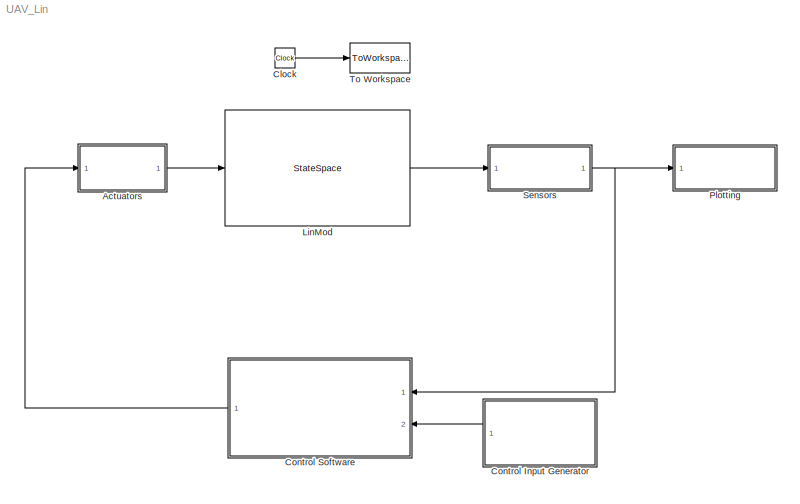
MODEL UAV_Lin
KIND model
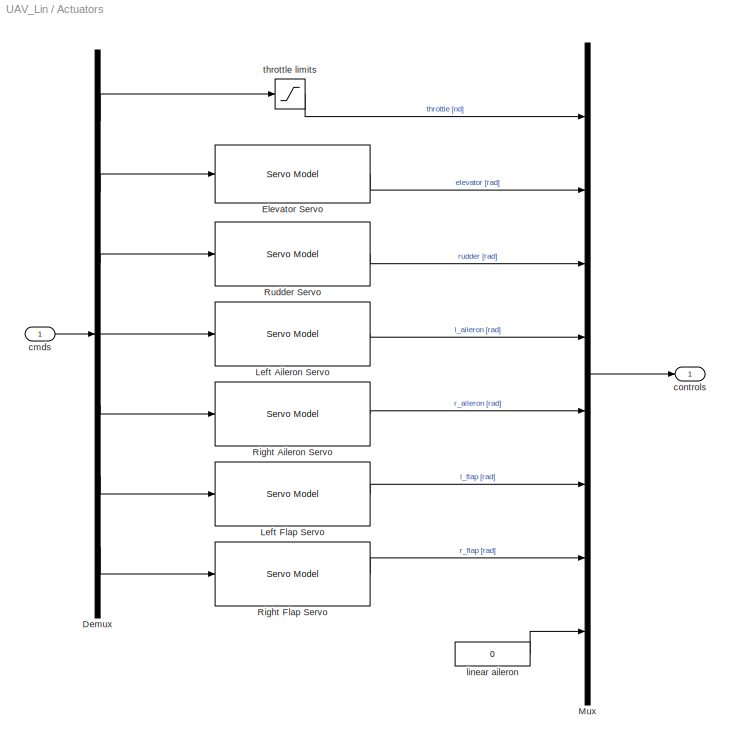
BLOCK [SubSystem] Actuators
  AncestorBlock = Actuator_Lib/Actuators
  FunctionWithSeparateData = off
  MaskHideContents = off
  MinAlgLoopOccurrences = off
  Opaque = off
  Ports = [1, 1]
  PropExecContextOutsideSubsystem = off
  RTWSystemCode = Auto
  RequestExecContextInheritance = off
  SID = 2
BLOCK [Demux] Actuators/Demux
  DisplayOption = bar
  Outputs = 7
  Ports = [1, 7]
  SID = 203
BLOCK [Reference] Actuators/Elevator Servo  REF=Actuator_Lib/Servo Model
  FunctionWithSeparateData = off
  POS_hi = AC.Actuator.elevator.PosLim-TrimCondition.Inputs.elevator
  POS_lo = AC.Actuator.elevator.NegLim-TrimCondition.Inputs.elevator
  Ports = [1, 1]
  RL = AC.Actuator.elevator.RateLim
  RTWMemSecDataConstants = Inherit from model
  RTWMemSecDataInternal = Inherit from model
  RTWMemSecDataParameters = Inherit from model
  RTWMemSecFuncExecute = Inherit from model
  RTWMemSecFuncInitTerm = Inherit from model
  SID = 203
  ShowPortLabels = FromPortIcon
  SourceBlock = Actuator_Lib/Servo Model
  SourceType = Rate and Position Limited Servo
  SystemSampleTime = -1
  freq = AC.Actuator.elevator.BW
BLOCK [Reference] Actuators/Left Aileron Servo  REF=Actuator_Lib/Servo Model
  FunctionWithSeparateData = off
  POS_hi = AC.Actuator.l_aileron.PosLim-TrimCondition.Inputs.l_aileron
  POS_lo = AC.Actuator.l_aileron.NegLim-TrimCondition.Inputs.l_aileron
  Ports = [1, 1]
  RL = AC.Actuator.l_aileron.RateLim
  RTWMemSecDataConstants = Inherit from model
  RTWMemSecDataInternal = Inherit from model
  RTWMemSecDataParameters = Inherit from model
  RTWMemSecFuncExecute = Inherit from model
  RTWMemSecFuncInitTerm = Inherit from model
  SID = 203
  ShowPortLabels = FromPortIcon
  SourceBlock = Actuator_Lib/Servo Model
  SourceType = Rate and Position Limited Servo
  SystemSampleTime = -1
  freq = AC.Actuator.l_aileron.BW
BLOCK [Reference] Actuators/Left Flap Servo  REF=Actuator_Lib/Servo Model
  FunctionWithSeparateData = off
  POS_hi = AC.Actuator.l_flap.PosLim
  POS_lo = AC.Actuator.l_flap.NegLim
  Ports = [1, 1]
  RL = AC.Actuator.l_flap.RateLim
  RTWMemSecDataConstants = Inherit from model
  RTWMemSecDataInternal = Inherit from model
  RTWMemSecDataParameters = Inherit from model
  RTWMemSecFuncExecute = Inherit from model
  RTWMemSecFuncInitTerm = Inherit from model
  SID = 203
  ShowPortLabels = FromPortIcon
  SourceBlock = Actuator_Lib/Servo Model
  SourceType = Rate and Position Limited Servo
  SystemSampleTime = -1
  freq = AC.Actuator.l_flap.BW
BLOCK [Mux] Actuators/Mux
  DisplayOption = bar
  Inputs = 8
  Ports = [8, 1]
  SID = 203
BLOCK [Reference] Actuators/Right Aileron Servo  REF=Actuator_Lib/Servo Model
  FunctionWithSeparateData = off
  POS_hi = AC.Actuator.r_aileron.PosLim-TrimCondition.Inputs.r_aileron
  POS_lo = AC.Actuator.r_aileron.NegLim-TrimCondition.Inputs.r_aileron
  Ports = [1, 1]
  RL = AC.Actuator.r_aileron.RateLim
  RTWMemSecDataConstants = Inherit from model
  RTWMemSecDataInternal = Inherit from model
  RTWMemSecDataParameters = Inherit from model
  RTWMemSecFuncExecute = Inherit from model
  RTWMemSecFuncInitTerm = Inherit from model
  SID = 203
  ShowPortLabels = FromPortIcon
  SourceBlock = Actuator_Lib/Servo Model
  SourceType = Rate and Position Limited Servo
  SystemSampleTime = -1
  freq = AC.Actuator.r_aileron.BW
BLOCK [Reference] Actuators/Right Flap Servo  REF=Actuator_Lib/Servo Model
  FunctionWithSeparateData = off
  POS_hi = AC.Actuator.l_flap.PosLim
  POS_lo = AC.Actuator.l_flap.NegLim
  Ports = [1, 1]
  RL = AC.Actuator.l_flap.RateLim
  RTWMemSecDataConstants = Inherit from model
  RTWMemSecDataInternal = Inherit from model
  RTWMemSecDataParameters = Inherit from model
  RTWMemSecFuncExecute = Inherit from model
  RTWMemSecFuncInitTerm = Inherit from model
  SID = 203
  ShowPortLabels = FromPortIcon
  SourceBlock = Actuator_Lib/Servo Model
  SourceType = Rate and Position Limited Servo
  SystemSampleTime = -1
  freq = AC.Actuator.l_flap.BW
BLOCK [Reference] Actuators/Rudder Servo  REF=Actuator_Lib/Servo Model
  FunctionWithSeparateData = off
  POS_hi = AC.Actuator.rudder.PosLim-TrimCondition.Inputs.rudder
  POS_lo = AC.Actuator.rudder.NegLim-TrimCondition.Inputs.rudder
  Ports = [1, 1]
  RL = AC.Actuator.rudder.RateLim
  RTWMemSecDataConstants = Inherit from model
  RTWMemSecDataInternal = Inherit from model
  RTWMemSecDataParameters = Inherit from model
  RTWMemSecFuncExecute = Inherit from model
  RTWMemSecFuncInitTerm = Inherit from model
  SID = 203
  ShowPortLabels = FromPortIcon
  SourceBlock = Actuator_Lib/Servo Model
  SourceType = Rate and Position Limited Servo
  SystemSampleTime = -1
  freq = AC.Actuator.rudder.BW
BLOCK [Inport] Actuators/cmds
  IconDisplay = Port number
  SID = 203
BLOCK [Outport] Actuators/controls
  IconDisplay = Port number
  SID = 203
BLOCK [Constant] Actuators/linear aileron
  SID = 208
  Value = 0
BLOCK [Saturate] Actuators/throttle limits
  LowerLimit = -TrimCondition.Inputs.throttle
  Ports = [1, 1]
  SID = 203
  UpperLimit = 1-TrimCondition.Inputs.throttle
BLOCK [Clock] Clock
  Decimation = 10
  SID = 165
BLOCK [ModelReference] Control Input Generator
  CopyOfModelName = control_input
  ModelNameDialog = control_input
  ModelReferenceVersion = 1.72
  Ports = [0, 1]
  SID = 520
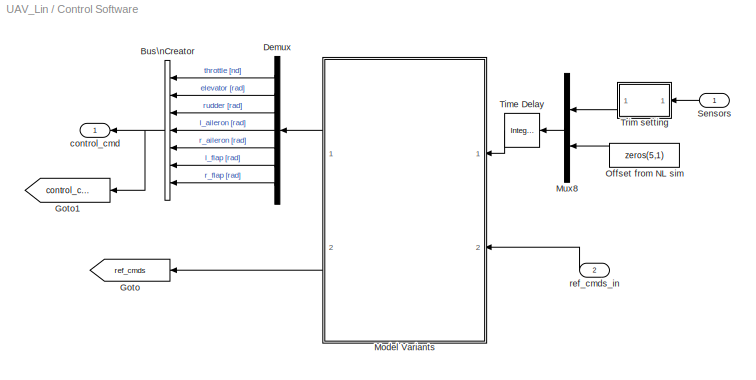
BLOCK [SubSystem] Control Software
  FunctionWithSeparateData = off
  MaskHideContents = off
  MinAlgLoopOccurrences = off
  Opaque = off
  Ports = [2, 1]
  PropExecContextOutsideSubsystem = off
  RTWSystemCode = Auto
  RequestExecContextInheritance = off
  SID = 8
BLOCK [BusCreator] Control Software/Bus\nCreator
  DisplayOption = bar
  Inputs = 7
  Ports = [7, 1]
  SID = 216
BLOCK [Demux] Control Software/Demux
  DisplayOption = bar
  Outputs = 7
  Ports = [1, 7]
  SID = 217
BLOCK [Goto] Control Software/Goto
  GotoTag = ref_cmds
  SID = 167
  TagVisibility = global
BLOCK [Goto] Control Software/Goto1
  GotoTag = control_cmds
  SID = 168
  TagVisibility = global
BLOCK [ModelReference] Control Software/Model Variants
  AttributesFormatString = %<ActiveVariant>
  CopyOfModelName = waypoint_control
  ModelNameDialog = waypoint_control
  ModelReferenceVersion = 1.171
  Ports = [2, 2]
  SID = 765
  Variant = on
BLOCK [Mux] Control Software/Mux8
  DisplayOption = bar
  Inputs = 2
  Ports = [2, 1]
  SID = 396
BLOCK [Constant] Control Software/Offset from NL sim
  OutDataType = fixdt(1, 16)
  OutScaling = 2^0
  SID = 398
  Value = zeros(5,1)
BLOCK [Inport] Control Software/Sensors
  IconDisplay = Port number
  OutDataType = fixdt(1, 16)
  OutScaling = 2^0
  SID = 9
BLOCK [Reference] Control Software/Time Delay  REF=simulink/Discrete/Integer Delay
  NumDelays = IntegerTimeDelay
  Ports = [1, 1]
  SID = 205
  SourceBlock = simulink/Discrete/Integer Delay
  SourceType = Integer Delay
  UserData = DataTag0
  UserDataPersistent = on
  samptime = SampleTime
  vinit = repmat([TrimCondition.AttitudeIni;TrimCondition.RatesIni;TrimCondition.AccelsIni;OperatingPoint.op_report.Outputs(4).y;TrimCondition.WindAxesIni;0;zeros(5,1)],[1,IntegerTimeDelay])
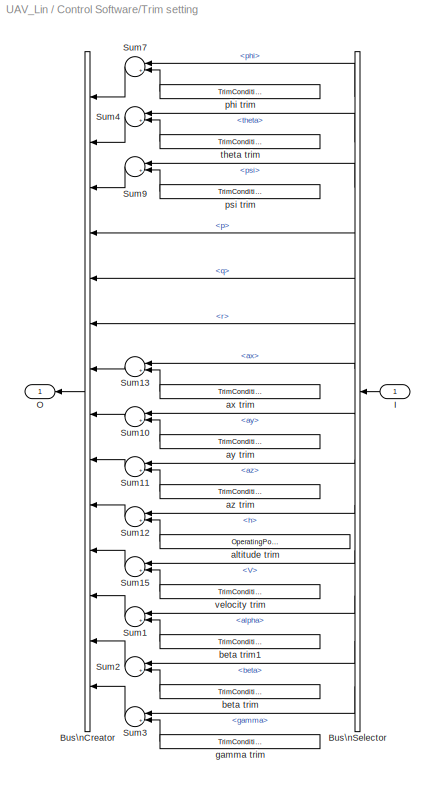
BLOCK [SubSystem] Control Software/Trim setting 
  AncestorBlock = Actuator_Lib/Trim setting
  FunctionWithSeparateData = off
  MaskHideContents = off
  MinAlgLoopOccurrences = off
  Opaque = off
  Ports = [1, 1]
  PropExecContextOutsideSubsystem = off
  RTWSystemCode = Auto
  RequestExecContextInheritance = off
  SID = 393
BLOCK [BusCreator] Control Software/Trim setting /Bus\nCreator
  DisplayOption = bar
  Inputs = 14
  Ports = [14, 1]
  SID = 743
BLOCK [BusSelector] Control Software/Trim setting /Bus\nSelector
  OutputSignals = phi,theta,psi,p,q,r,ax,ay,az,h,V,alpha,beta,gamma
  Ports = [1, 14]
  SID = 744
BLOCK [Inport] Control Software/Trim setting /I
  IconDisplay = Port number
  OutDataType = sfix(16)
  OutScaling = 2^0
  SID = 679
BLOCK [Outport] Control Software/Trim setting /O
  IconDisplay = Port number
  OutDataType = sfix(16)
  OutScaling = 2^0
  SID = 694
BLOCK [Sum] Control Software/Trim setting /Sum1
  IconShape = round
  InputSameDT = off
  Inputs = |++
  OutDataType = sfix(16)
  OutDataTypeMode = Inherit via internal rule
  OutDataTypeStr = Inherit: Inherit via internal rule
  OutScaling = 2^0
  Ports = [2, 1]
  SID = 768
  SaturateOnIntegerOverflow = off
BLOCK [Sum] Control Software/Trim setting /Sum10
  IconShape = round
  InputSameDT = off
  Inputs = |++
  OutDataType = sfix(16)
  OutDataTypeMode = Inherit via internal rule
  OutDataTypeStr = Inherit: Inherit via internal rule
  OutScaling = 2^0
  Ports = [2, 1]
  SID = 748
  SaturateOnIntegerOverflow = off
BLOCK [Sum] Control Software/Trim setting /Sum11
  IconShape = round
  InputSameDT = off
  Inputs = |++
  OutDataType = sfix(16)
  OutDataTypeMode = Inherit via internal rule
  OutDataTypeStr = Inherit: Inherit via internal rule
  OutScaling = 2^0
  Ports = [2, 1]
  SID = 749
  SaturateOnIntegerOverflow = off
BLOCK [Sum] Control Software/Trim setting /Sum12
  IconShape = round
  InputSameDT = off
  Inputs = |++
  OutDataType = sfix(16)
  OutDataTypeMode = Inherit via internal rule
  OutDataTypeStr = Inherit: Inherit via internal rule
  OutScaling = 2^0
  Ports = [2, 1]
  SID = 750
  SaturateOnIntegerOverflow = off
BLOCK [Sum] Control Software/Trim setting /Sum13
  IconShape = round
  InputSameDT = off
  Inputs = |++
  OutDataType = sfix(16)
  OutDataTypeMode = Inherit via internal rule
  OutDataTypeStr = Inherit: Inherit via internal rule
  OutScaling = 2^0
  Ports = [2, 1]
  SID = 751
  SaturateOnIntegerOverflow = off
BLOCK [Sum] Control Software/Trim setting /Sum15
  IconShape = round
  InputSameDT = off
  Inputs = |++
  OutDataType = sfix(16)
  OutDataTypeMode = Inherit via internal rule
  OutDataTypeStr = Inherit: Inherit via internal rule
  OutScaling = 2^0
  Ports = [2, 1]
  SID = 759
  SaturateOnIntegerOverflow = off
BLOCK [Sum] Control Software/Trim setting /Sum2
  IconShape = round
  InputSameDT = off
  Inputs = |++
  OutDataType = sfix(16)
  OutDataTypeMode = Inherit via internal rule
  OutDataTypeStr = Inherit: Inherit via internal rule
  OutScaling = 2^0
  Ports = [2, 1]
  SID = 770
  SaturateOnIntegerOverflow = off
BLOCK [Sum] Control Software/Trim setting /Sum3
  IconShape = round
  InputSameDT = off
  Inputs = |++
  OutDataType = sfix(16)
  OutDataTypeMode = Inherit via internal rule
  OutDataTypeStr = Inherit: Inherit via internal rule
  OutScaling = 2^0
  Ports = [2, 1]
  SID = 772
  SaturateOnIntegerOverflow = off
BLOCK [Sum] Control Software/Trim setting /Sum4
  IconShape = round
  InputSameDT = off
  Inputs = |++
  OutDataType = sfix(16)
  OutDataTypeMode = Inherit via internal rule
  OutDataTypeStr = Inherit: Inherit via internal rule
  OutScaling = 2^0
  Ports = [2, 1]
  SID = 774
  SaturateOnIntegerOverflow = off
BLOCK [Sum] Control Software/Trim setting /Sum7
  IconShape = round
  InputSameDT = off
  Inputs = |++
  OutDataType = sfix(16)
  OutDataTypeMode = Inherit via internal rule
  OutDataTypeStr = Inherit: Inherit via internal rule
  OutScaling = 2^0
  Ports = [2, 1]
  SID = 745
  SaturateOnIntegerOverflow = off
BLOCK [Sum] Control Software/Trim setting /Sum9
  IconShape = round
  InputSameDT = off
  Inputs = |++
  OutDataType = sfix(16)
  OutDataTypeMode = Inherit via internal rule
  OutDataTypeStr = Inherit: Inherit via internal rule
  OutScaling = 2^0
  Ports = [2, 1]
  SID = 747
  SaturateOnIntegerOverflow = off
BLOCK [Constant] Control Software/Trim setting /altitude trim
  OutDataType = sfix(16)
  OutScaling = 2^0
  SID = 761
  Value = OperatingPoint.op_report.Outputs(4).y
BLOCK [Constant] Control Software/Trim setting /ax trim
  OutDataType = sfix(16)
  OutScaling = 2^0
  SID = 769
  Value = TrimCondition.AccelsIni(1)
BLOCK [Constant] Control Software/Trim setting /ay trim
  OutDataType = sfix(16)
  OutScaling = 2^0
  SID = 771
  Value = TrimCondition.AccelsIni(2)
BLOCK [Constant] Control Software/Trim setting /az trim
  OutDataType = sfix(16)
  OutScaling = 2^0
  SID = 773
  Value = TrimCondition.AccelsIni(3)
BLOCK [Constant] Control Software/Trim setting /beta trim
  OutDataType = sfix(16)
  OutScaling = 2^0
  SID = 775
  Value = TrimCondition.WindAxesIni(3)
BLOCK [Constant] Control Software/Trim setting /beta trim1
  OutDataType = sfix(16)
  OutScaling = 2^0
  SID = 776
  Value = TrimCondition.WindAxesIni(2)
BLOCK [Constant] Control Software/Trim setting /gamma trim
  OutDataType = sfix(16)
  OutScaling = 2^0
  SID = 765
  Value = TrimCondition.target.gamma
BLOCK [Constant] Control Software/Trim setting /phi trim
  OutDataType = sfix(16)
  OutScaling = 2^0
  SID = 762
  Value = TrimCondition.AttitudeIni(1)
BLOCK [Constant] Control Software/Trim setting /psi trim
  OutDataType = sfix(16)
  OutScaling = 2^0
  SID = 764
  Value = TrimCondition.AttitudeIni(3)
BLOCK [Constant] Control Software/Trim setting /theta trim
  OutDataType = sfix(16)
  OutScaling = 2^0
  SID = 763
  Value = TrimCondition.AttitudeIni(2)
BLOCK [Constant] Control Software/Trim setting /velocity trim
  OutDataType = sfix(16)
  OutScaling = 2^0
  SID = 760
  Value = TrimCondition.WindAxesIni(1)
BLOCK [Outport] Control Software/control_cmd
  IconDisplay = Port number
  OutDataType = fixdt(1, 16)
  OutScaling = 2^0
  SID = 10
BLOCK [Inport] Control Software/ref_cmds_in
  IconDisplay = Port number
  OutDataType = fixdt(1, 16)
  OutScaling = 2^0
  Port = 2
  SID = 11
BLOCK [StateSpace] LinMod
  A = linmodel.a
  B = linmodel.b
  C = linmodel.c
  D = linmodel.d
  SID = 1
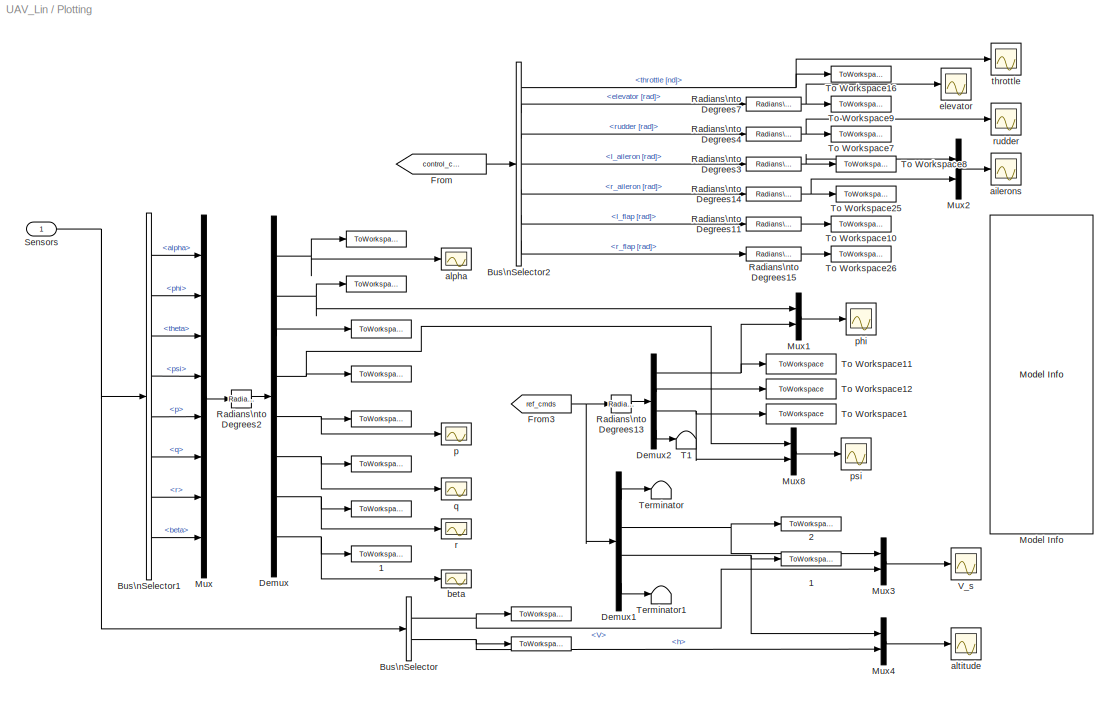
BLOCK [SubSystem] Plotting
  FunctionWithSeparateData = off
  MaskHideContents = off
  MinAlgLoopOccurrences = off
  Opaque = off
  Ports = [1]
  PropExecContextOutsideSubsystem = off
  RTWSystemCode = Auto
  RequestExecContextInheritance = off
  SID = 24
BLOCK [ToWorkspace] Plotting/  
  MaxDataPoints = inf
  Ports = [1]
  SID = 26
  SampleTime = SampleTime
  SaveFormat = Array
  VariableName = r_L
BLOCK [ToWorkspace] Plotting/    
  MaxDataPoints = inf
  Ports = [1]
  SID = 28
  SampleTime = SampleTime
  SaveFormat = Array
  VariableName = phi_L
BLOCK [ToWorkspace] Plotting/      
  MaxDataPoints = inf
  Ports = [1]
  SID = 29
  SampleTime = SampleTime
  SaveFormat = Array
  VariableName = theta_L
BLOCK [ToWorkspace] Plotting/       
  MaxDataPoints = inf
  Ports = [1]
  SID = 30
  SampleTime = SampleTime
  SaveFormat = Array
  VariableName = psi_L
BLOCK [ToWorkspace] Plotting/          
  MaxDataPoints = inf
  Ports = [1]
  SID = 526
  SampleTime = SampleTime
  SaveFormat = Array
  VariableName = V_L
BLOCK [ToWorkspace] Plotting/           
  MaxDataPoints = inf
  Ports = [1]
  SID = 32
  SampleTime = SampleTime
  SaveFormat = Array
  VariableName = p_L
BLOCK [ToWorkspace] Plotting/            
  MaxDataPoints = inf
  Ports = [1]
  SID = 527
  SampleTime = SampleTime
  SaveFormat = Array
  VariableName = h_L
BLOCK [ToWorkspace] Plotting/                   
  MaxDataPoints = inf
  Ports = [1]
  SID = 34
  SampleTime = SampleTime
  SaveFormat = Array
  VariableName = alpha_L
BLOCK [ToWorkspace] Plotting/                    
  MaxDataPoints = inf
  Ports = [1]
  SID = 35
  SampleTime = SampleTime
  SaveFormat = Array
  VariableName = q_L
BLOCK [ToWorkspace] Plotting/                   1
  MaxDataPoints = inf
  Ports = [1]
  SID = 771
  SampleTime = SampleTime
  SaveFormat = Array
  VariableName = beta_L
BLOCK [ToWorkspace] Plotting/            1
  MaxDataPoints = inf
  Ports = [1]
  SID = 266
  SampleTime = SampleTime
  SaveFormat = Array
  VariableName = h_cmd
BLOCK [ToWorkspace] Plotting/            2
  MaxDataPoints = inf
  Ports = [1]
  SID = 269
  SampleTime = SampleTime
  SaveFormat = Array
  VariableName = V_cmd
BLOCK [BusSelector] Plotting/Bus\nSelector
  OutputSignals = V,h
  Ports = [1, 2]
  SID = 528
BLOCK [BusSelector] Plotting/Bus\nSelector1
  OutputSignals = alpha,phi,theta,psi,p,q,r,beta
  Ports = [1, 8]
  SID = 37
BLOCK [BusSelector] Plotting/Bus\nSelector2
  OutputSignals = throttle [nd],elevator [rad],rudder [rad],l_aileron [rad],r_aileron [rad],l_flap [rad],r_flap [rad]
  Ports = [1, 7]
  SID = 218
BLOCK [Demux] Plotting/Demux
  DisplayOption = bar
  Outputs = 8
  Ports = [1, 8]
  SID = 38
BLOCK [Demux] Plotting/Demux1
  DisplayOption = bar
  Outputs = [6 1 1 4]
  Ports = [1, 4]
  SID = 262
BLOCK [Demux] Plotting/Demux2
  DisplayOption = bar
  Outputs = [1 1 1 9]
  Ports = [1, 4]
  SID = 192
BLOCK [From] Plotting/From
  GotoTag = control_cmds
  SID = 170
  TagVisibility = global
BLOCK [From] Plotting/From3
  GotoTag = ref_cmds
  SID = 193
  TagVisibility = global
BLOCK [Reference] Plotting/Model Info  REF=simulink/Model-Wide\nUtilities/Model Info
  BlockCM = None
  DisplayStringWithTags = Ref Cmd Port Info\n\n1. phi_cmd\n2. theta_cmd\n3. psi_cmd\n4. p_cmd\n5. q_cmd\n6. r_cmd\n7. V_s_cmd\n8. h_cmd\n9. gndtrk_cmd\n10. aoa_cmd\n11. aos_cmd\n12. gamma_cmd\n13. signal_0\n14. signal_1\n15. signal_2\n16. signal_3\n17. signal_4\n18. signal_5\n19. signal_6\n20. signal_7\n21. signal_8\n22. signal_9
  Frame = on
  FunctionWithSeparateData = off
  HorizontalTextAlignment = Center
  InitialBlockCM = None
  LeftAlignmentValue = 0.5
  MaskDisplayString = Ref Cmd Port Info\\n\\n1. phi_cmd\\n2. theta_cmd\\n3. psi_cmd\\n4. p_cmd\\n5. q_cmd\\n6. r_cmd\\n7. V_s_cmd\\n8. h_cmd\\n9. gndtrk_cmd\\n10. aoa_cmd\\n11. aos_cmd\\n12. gamma_cmd\\n13. signal_0\\n14. signal_1\\n15. signal_2\\n16. signal_3\\n17. signal_4\\n18. signal_5\\n19. signal_6\\n20. signal_7\\n21. signal_8\\n22. signal_9
  Ports = []
  RTWMemSecDataConstants = Inherit from model
  RTWMemSecDataInternal = Inherit from model
  RTWMemSecDataParameters = Inherit from model
  RTWMemSecFuncExecute = Inherit from model
  RTWMemSecFuncInitTerm = Inherit from model
  SID = 767
  ShowPortLabels = FromPortIcon
  SourceBlock = simulink/Model-Wide\nUtilities/Model Info
  SourceBlockDiagram = UAV_Lin
  SourceType = CMBlock
  SystemSampleTime = -1
  TagMaxNumber = 20
BLOCK [Mux] Plotting/Mux
  DisplayOption = bar
  Inputs = 8
  Ports = [8, 1]
  SID = 39
BLOCK [Mux] Plotting/Mux1
  DisplayOption = bar
  Inputs = 2
  Ports = [2, 1]
  SID = 197
BLOCK [Mux] Plotting/Mux2
  DisplayOption = bar
  Inputs = 2
  Ports = [2, 1]
  SID = 171
BLOCK [Mux] Plotting/Mux3
  DisplayOption = bar
  Inputs = 2
  Ports = [2, 1]
  SID = 529
BLOCK [Mux] Plotting/Mux4
  DisplayOption = bar
  Inputs = 2
  Ports = [2, 1]
  SID = 530
BLOCK [Mux] Plotting/Mux8
  DisplayOption = bar
  Inputs = 2
  Ports = [2, 1]
  SID = 200
BLOCK [Reference] Plotting/Radians\nto Degrees11  REF=simulink_extras/Transformations/Radians\nto Degrees
  FunctionWithSeparateData = off
  Ports = [1, 1]
  RTWMemSecDataConstants = Inherit from model
  RTWMemSecDataInternal = Inherit from model
  RTWMemSecDataParameters = Inherit from model
  RTWMemSecFuncExecute = Inherit from model
  RTWMemSecFuncInitTerm = Inherit from model
  SID = 172
  ShowPortLabels = FromPortIcon
  SourceBlock = simulink_extras/Transformations/Radians\nto Degrees
  SourceType = RadiansToDegrees
  SystemSampleTime = -1
BLOCK [Reference] Plotting/Radians\nto Degrees13  REF=simulink_extras/Transformations/Radians\nto Degrees
  FunctionWithSeparateData = off
  Ports = [1, 1]
  RTWMemSecDataConstants = Inherit from model
  RTWMemSecDataInternal = Inherit from model
  RTWMemSecDataParameters = Inherit from model
  RTWMemSecFuncExecute = Inherit from model
  RTWMemSecFuncInitTerm = Inherit from model
  SID = 194
  ShowPortLabels = FromPortIcon
  SourceBlock = simulink_extras/Transformations/Radians\nto Degrees
  SourceType = RadiansToDegrees
  SystemSampleTime = -1
BLOCK [Reference] Plotting/Radians\nto Degrees14  REF=simulink_extras/Transformations/Radians\nto Degrees
  FunctionWithSeparateData = off
  Ports = [1, 1]
  RTWMemSecDataConstants = Inherit from model
  RTWMemSecDataInternal = Inherit from model
  RTWMemSecDataParameters = Inherit from model
  RTWMemSecFuncExecute = Inherit from model
  RTWMemSecFuncInitTerm = Inherit from model
  SID = 173
  ShowPortLabels = FromPortIcon
  SourceBlock = simulink_extras/Transformations/Radians\nto Degrees
  SourceType = RadiansToDegrees
  SystemSampleTime = -1
BLOCK [Reference] Plotting/Radians\nto Degrees15  REF=simulink_extras/Transformations/Radians\nto Degrees
  FunctionWithSeparateData = off
  Ports = [1, 1]
  RTWMemSecDataConstants = Inherit from model
  RTWMemSecDataInternal = Inherit from model
  RTWMemSecDataParameters = Inherit from model
  RTWMemSecFuncExecute = Inherit from model
  RTWMemSecFuncInitTerm = Inherit from model
  SID = 174
  ShowPortLabels = FromPortIcon
  SourceBlock = simulink_extras/Transformations/Radians\nto Degrees
  SourceType = RadiansToDegrees
  SystemSampleTime = -1
BLOCK [Reference] Plotting/Radians\nto Degrees2  REF=simulink_extras/Transformations/Radians\nto Degrees
  FunctionWithSeparateData = off
  Ports = [1, 1]
  RTWMemSecDataConstants = Inherit from model
  RTWMemSecDataInternal = Inherit from model
  RTWMemSecDataParameters = Inherit from model
  RTWMemSecFuncExecute = Inherit from model
  RTWMemSecFuncInitTerm = Inherit from model
  SID = 199
  ShowPortLabels = FromPortIcon
  SourceBlock = simulink_extras/Transformations/Radians\nto Degrees
  SourceType = RadiansToDegrees
  SystemSampleTime = -1
BLOCK [Reference] Plotting/Radians\nto Degrees3  REF=simulink_extras/Transformations/Radians\nto Degrees
  FunctionWithSeparateData = off
  Ports = [1, 1]
  RTWMemSecDataConstants = Inherit from model
  RTWMemSecDataInternal = Inherit from model
  RTWMemSecDataParameters = Inherit from model
  RTWMemSecFuncExecute = Inherit from model
  RTWMemSecFuncInitTerm = Inherit from model
  SID = 175
  ShowPortLabels = FromPortIcon
  SourceBlock = simulink_extras/Transformations/Radians\nto Degrees
  SourceType = RadiansToDegrees
  SystemSampleTime = -1
BLOCK [Reference] Plotting/Radians\nto Degrees4  REF=simulink_extras/Transformations/Radians\nto Degrees
  FunctionWithSeparateData = off
  Ports = [1, 1]
  RTWMemSecDataConstants = Inherit from model
  RTWMemSecDataInternal = Inherit from model
  RTWMemSecDataParameters = Inherit from model
  RTWMemSecFuncExecute = Inherit from model
  RTWMemSecFuncInitTerm = Inherit from model
  SID = 176
  ShowPortLabels = FromPortIcon
  SourceBlock = simulink_extras/Transformations/Radians\nto Degrees
  SourceType = RadiansToDegrees
  SystemSampleTime = -1
BLOCK [Reference] Plotting/Radians\nto Degrees7  REF=simulink_extras/Transformations/Radians\nto Degrees
  FunctionWithSeparateData = off
  Ports = [1, 1]
  RTWMemSecDataConstants = Inherit from model
  RTWMemSecDataInternal = Inherit from model
  RTWMemSecDataParameters = Inherit from model
  RTWMemSecFuncExecute = Inherit from model
  RTWMemSecFuncInitTerm = Inherit from model
  SID = 177
  ShowPortLabels = FromPortIcon
  SourceBlock = simulink_extras/Transformations/Radians\nto Degrees
  SourceType = RadiansToDegrees
  SystemSampleTime = -1
BLOCK [Inport] Plotting/Sensors
  IconDisplay = Port number
  OutDataType = fixdt(1, 16)
  OutScaling = 2^0
  SID = 25
BLOCK [Terminator] Plotting/T1
  SID = 202
BLOCK [Terminator] Plotting/Terminator
  SID = 264
BLOCK [Terminator] Plotting/Terminator1
  SID = 265
BLOCK [ToWorkspace] Plotting/To Workspace1
  MaxDataPoints = inf
  Ports = [1]
  SID = 770
  SampleTime = SampleTime
  SaveFormat = Array
  VariableName = psi_cmd_L
BLOCK [ToWorkspace] Plotting/To Workspace10
  MaxDataPoints = inf
  Ports = [1]
  SID = 178
  SampleTime = SampleTime
  SaveFormat = Array
  VariableName = l_flap_L
BLOCK [ToWorkspace] Plotting/To Workspace11
  MaxDataPoints = inf
  Ports = [1]
  SID = 195
  SampleTime = SampleTime
  SaveFormat = Array
  VariableName = phi_cmd_L
BLOCK [ToWorkspace] Plotting/To Workspace12
  MaxDataPoints = inf
  Ports = [1]
  SID = 196
  SampleTime = SampleTime
  SaveFormat = Array
  VariableName = theta_cmd_L
BLOCK [ToWorkspace] Plotting/To Workspace16
  MaxDataPoints = inf
  Ports = [1]
  SID = 179
  SampleTime = SampleTime
  SaveFormat = Array
  VariableName = throttle_L
BLOCK [ToWorkspace] Plotting/To Workspace25
  MaxDataPoints = inf
  Ports = [1]
  SID = 180
  SampleTime = SampleTime
  SaveFormat = Array
  VariableName = r_aileron_L
BLOCK [ToWorkspace] Plotting/To Workspace26
  MaxDataPoints = inf
  Ports = [1]
  SID = 181
  SampleTime = SampleTime
  SaveFormat = Array
  VariableName = r_flap_L
BLOCK [ToWorkspace] Plotting/To Workspace7
  MaxDataPoints = inf
  Ports = [1]
  SID = 182
  SampleTime = SampleTime
  SaveFormat = Array
  VariableName = rudder_L
BLOCK [ToWorkspace] Plotting/To Workspace8
  MaxDataPoints = inf
  Ports = [1]
  SID = 183
  SampleTime = SampleTime
  SaveFormat = Array
  VariableName = l_aileron_L
BLOCK [ToWorkspace] Plotting/To Workspace9
  MaxDataPoints = inf
  Ports = [1]
  SID = 184
  SampleTime = SampleTime
  SaveFormat = Array
  VariableName = elevator_L
BLOCK [Scope] Plotting/V_s
  DataFormat = StructureWithTime
  Floating = off
  LimitDataPoints = off
  NumInputPorts = 1
  Ports = [1]
  SID = 524
  SampleTime = 0
  SaveName = ScopeData9
  TimeRange = 5.003843197540354
  YMax = 0
  YMin = -0.0045
  ZoomMode = yonly
BLOCK [Scope] Plotting/ailerons
  DataFormat = StructureWithTime
  Floating = off
  LimitDataPoints = off
  NumInputPorts = 1
  Ports = [1]
  SID = 185
  SampleTime = 0
  TimeRange = 20
  YMax = 20
  YMin = -20
  ZoomMode = xonly
BLOCK [Scope] Plotting/alpha
  DataFormat = StructureWithTime
  Floating = off
  LimitDataPoints = off
  NumInputPorts = 1
  Ports = [1]
  SID = 768
  SampleTime = 0
  SaveName = ScopeData11
  TimeRange = 5.003843197540354
  YMax = -39.58333333333336
  YMin = -60
  ZoomMode = xonly
BLOCK [Scope] Plotting/altitude
  DataFormat = StructureWithTime
  Floating = off
  LimitDataPoints = off
  NumInputPorts = 1
  Ports = [1]
  SID = 525
  SampleTime = 0
  SaveName = ScopeData10
  TimeRange = 5.003843197540354
  YMax = -39.58333333333336
  YMin = -60
  ZoomMode = yonly
BLOCK [Scope] Plotting/beta
  DataFormat = StructureWithTime
  Floating = off
  LimitDataPoints = off
  NumInputPorts = 1
  Ports = [1]
  SID = 772
  SampleTime = 0
  SaveName = ScopeData12
  TimeRange = 5.003843197540354
  YMax = -39.58333333333336
  YMin = -60
  ZoomMode = xonly
BLOCK [Scope] Plotting/elevator
  DataFormat = StructureWithTime
  Floating = off
  LimitDataPoints = off
  NumInputPorts = 1
  Ports = [1]
  SID = 186
  SampleTime = 0
  SaveName = ScopeData1
  TimeRange = 45
  YMax = 6.5
  YMin = 4
  ZoomMode = yonly
BLOCK [Scope] Plotting/p
  DataFormat = StructureWithTime
  Floating = off
  LimitDataPoints = off
  NumInputPorts = 1
  Ports = [1]
  SID = 521
  SampleTime = 0
  SaveName = ScopeData6
  TimeRange = 5.003843197540354
  YMax = -39.58333333333336
  YMin = -60
  ZoomMode = yonly
BLOCK [Scope] Plotting/phi
  DataFormat = StructureWithTime
  Floating = off
  LimitDataPoints = off
  NumInputPorts = 1
  Ports = [1]
  SID = 198
  SampleTime = 0
  SaveName = ScopeData4
  TimeRange = 120
  YMax = 2.228824347107585e-007
  YMin = -1.670062672776754e-007
  ZoomMode = xonly
BLOCK [Scope] Plotting/psi
  DataFormat = StructureWithTime
  Floating = off
  LimitDataPoints = off
  NumInputPorts = 1
  Ports = [1]
  SID = 201
  SampleTime = 0
  SaveName = ScopeData5
  TimeRange = 14
  YMax = 3.5
  YMin = 0
  ZoomMode = xonly
BLOCK [Scope] Plotting/q
  DataFormat = StructureWithTime
  Floating = off
  LimitDataPoints = off
  NumInputPorts = 1
  Ports = [1]
  SID = 522
  SampleTime = 0
  SaveName = ScopeData7
  TimeRange = 5.003843197540354
  YMax = -39.58333333333336
  YMin = -60
  ZoomMode = yonly
BLOCK [Scope] Plotting/r
  DataFormat = StructureWithTime
  Floating = off
  LimitDataPoints = off
  NumInputPorts = 1
  Ports = [1]
  SID = 523
  SampleTime = 0
  SaveName = ScopeData8
  TimeRange = 5.003843197540354
  YMax = -39.58333333333336
  YMin = -60
  ZoomMode = yonly
BLOCK [Scope] Plotting/rudder
  DataFormat = StructureWithTime
  Floating = off
  LimitDataPoints = off
  NumInputPorts = 1
  Ports = [1]
  SID = 187
  SampleTime = 0
  SaveName = ScopeData2
  TimeRange = 45
  YMax = 2
  YMin = -1.5
  ZoomMode = xonly
BLOCK [Scope] Plotting/throttle
  DataFormat = StructureWithTime
  Floating = off
  LimitDataPoints = off
  NumInputPorts = 1
  Ports = [1]
  SID = 188
  SampleTime = 0
  SaveName = ScopeData3
  TimeRange = 25
  YMax = 0.75
  YMin = 0.4
  ZoomMode = yonly
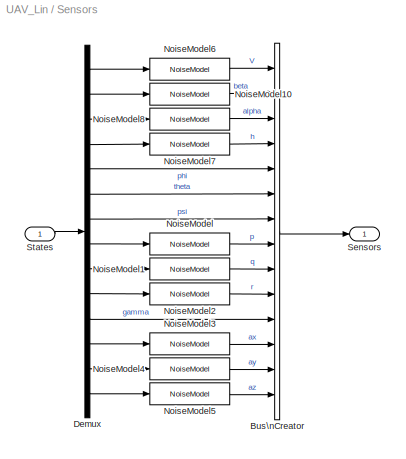
BLOCK [SubSystem] Sensors
  FunctionWithSeparateData = off
  MaskHideContents = off
  MinAlgLoopOccurrences = off
  Opaque = off
  Ports = [1, 1]
  PropExecContextOutsideSubsystem = off
  RTWSystemCode = Auto
  RequestExecContextInheritance = off
  SID = 3
BLOCK [BusCreator] Sensors/Bus\nCreator
  DisplayOption = bar
  Inputs = 14
  Ports = [14, 1]
  SID = 6
BLOCK [Demux] Sensors/Demux
  DisplayOption = bar
  Outputs = 14
  Ports = [1, 14]
  SID = 7
BLOCK [Reference] Sensors/NoiseModel  REF=Sensors_Lib/NoiseModel
  FunctionWithSeparateData = off
  Ports = [1, 1]
  RTWMemSecDataConstants = Inherit from model
  RTWMemSecDataInternal = Inherit from model
  RTWMemSecDataParameters = Inherit from model
  RTWMemSecFuncExecute = Inherit from model
  RTWMemSecFuncInitTerm = Inherit from model
  SID = 206
  ShowPortLabels = FromPortIcon
  SourceBlock = Sensors_Lib/NoiseModel
  SourceType = Sensor Model
  SystemSampleTime = -1
  bias = AC.Sensors.IMU.p_bias
  noise_on = AC.Sensors.NoiseOn
  scf = AC.Sensors.IMU.p_scf
  seed = 878230
  sigma = AC.Sensors.IMU.p_noise
  timestep = SampleTime
BLOCK [Reference] Sensors/NoiseModel1  REF=Sensors_Lib/NoiseModel
  FunctionWithSeparateData = off
  Ports = [1, 1]
  RTWMemSecDataConstants = Inherit from model
  RTWMemSecDataInternal = Inherit from model
  RTWMemSecDataParameters = Inherit from model
  RTWMemSecFuncExecute = Inherit from model
  RTWMemSecFuncInitTerm = Inherit from model
  SID = 207
  ShowPortLabels = FromPortIcon
  SourceBlock = Sensors_Lib/NoiseModel
  SourceType = Sensor Model
  SystemSampleTime = -1
  bias = AC.Sensors.IMU.q_bias
  noise_on = AC.Sensors.NoiseOn
  scf = AC.Sensors.IMU.q_scf
  seed = 878231
  sigma = AC.Sensors.IMU.q_noise
  timestep = SampleTime
BLOCK [Reference] Sensors/NoiseModel10  REF=Sensors_Lib/NoiseModel
  FunctionWithSeparateData = off
  Ports = [1, 1]
  RTWMemSecDataConstants = Inherit from model
  RTWMemSecDataInternal = Inherit from model
  RTWMemSecDataParameters = Inherit from model
  RTWMemSecFuncExecute = Inherit from model
  RTWMemSecFuncInitTerm = Inherit from model
  SID = 210
  ShowPortLabels = FromPortIcon
  SourceBlock = Sensors_Lib/NoiseModel
  SourceType = Sensor Model
  SystemSampleTime = -1
  bias = AC.Sensors.AirData.beta_bias
  noise_on = AC.Sensors.NoiseOn
  scf = AC.Sensors.AirData.beta_scf
  seed = 87828
  sigma = AC.Sensors.AirData.beta_noise
  timestep = SampleTime
BLOCK [Reference] Sensors/NoiseModel2  REF=Sensors_Lib/NoiseModel
  FunctionWithSeparateData = off
  Ports = [1, 1]
  RTWMemSecDataConstants = Inherit from model
  RTWMemSecDataInternal = Inherit from model
  RTWMemSecDataParameters = Inherit from model
  RTWMemSecFuncExecute = Inherit from model
  RTWMemSecFuncInitTerm = Inherit from model
  SID = 208
  ShowPortLabels = FromPortIcon
  SourceBlock = Sensors_Lib/NoiseModel
  SourceType = Sensor Model
  SystemSampleTime = -1
  bias = AC.Sensors.IMU.r_bias
  noise_on = AC.Sensors.NoiseOn
  scf = AC.Sensors.IMU.r_scf
  seed = 878232
  sigma = AC.Sensors.IMU.r_noise
  timestep = SampleTime
BLOCK [Reference] Sensors/NoiseModel3  REF=Sensors_Lib/NoiseModel
  FunctionWithSeparateData = off
  Ports = [1, 1]
  RTWMemSecDataConstants = Inherit from model
  RTWMemSecDataInternal = Inherit from model
  RTWMemSecDataParameters = Inherit from model
  RTWMemSecFuncExecute = Inherit from model
  RTWMemSecFuncInitTerm = Inherit from model
  SID = 212
  ShowPortLabels = FromPortIcon
  SourceBlock = Sensors_Lib/NoiseModel
  SourceType = Sensor Model
  SystemSampleTime = -1
  bias = AC.Sensors.IMU.ax_bias
  noise_on = AC.Sensors.NoiseOn
  scf = AC.Sensors.IMU.ax_scf
  seed = 878233
  sigma = AC.Sensors.IMU.ax_noise
  timestep = SampleTime
BLOCK [Reference] Sensors/NoiseModel4  REF=Sensors_Lib/NoiseModel
  FunctionWithSeparateData = off
  Ports = [1, 1]
  RTWMemSecDataConstants = Inherit from model
  RTWMemSecDataInternal = Inherit from model
  RTWMemSecDataParameters = Inherit from model
  RTWMemSecFuncExecute = Inherit from model
  RTWMemSecFuncInitTerm = Inherit from model
  SID = 213
  ShowPortLabels = FromPortIcon
  SourceBlock = Sensors_Lib/NoiseModel
  SourceType = Sensor Model
  SystemSampleTime = -1
  bias = AC.Sensors.IMU.ay_bias
  noise_on = AC.Sensors.NoiseOn
  scf = AC.Sensors.IMU.ay_scf
  seed = 878234
  sigma = AC.Sensors.IMU.ay_noise
  timestep = SampleTime
BLOCK [Reference] Sensors/NoiseModel5  REF=Sensors_Lib/NoiseModel
  FunctionWithSeparateData = off
  Ports = [1, 1]
  RTWMemSecDataConstants = Inherit from model
  RTWMemSecDataInternal = Inherit from model
  RTWMemSecDataParameters = Inherit from model
  RTWMemSecFuncExecute = Inherit from model
  RTWMemSecFuncInitTerm = Inherit from model
  SID = 214
  ShowPortLabels = FromPortIcon
  SourceBlock = Sensors_Lib/NoiseModel
  SourceType = Sensor Model
  SystemSampleTime = -1
  bias = AC.Sensors.IMU.az_bias
  noise_on = AC.Sensors.NoiseOn
  scf = AC.Sensors.IMU.az_scf
  seed = 878235
  sigma = AC.Sensors.IMU.az_noise
  timestep = SampleTime
BLOCK [Reference] Sensors/NoiseModel6  REF=Sensors_Lib/NoiseModel
  FunctionWithSeparateData = off
  Ports = [1, 1]
  RTWMemSecDataConstants = Inherit from model
  RTWMemSecDataInternal = Inherit from model
  RTWMemSecDataParameters = Inherit from model
  RTWMemSecFuncExecute = Inherit from model
  RTWMemSecFuncInitTerm = Inherit from model
  SID = 209
  ShowPortLabels = FromPortIcon
  SourceBlock = Sensors_Lib/NoiseModel
  SourceType = Sensor Model
  SystemSampleTime = -1
  bias = AC.Sensors.AirData.ias_bias
  noise_on = AC.Sensors.NoiseOn
  scf = AC.Sensors.AirData.ias_scf
  seed = 878236
  sigma = AC.Sensors.AirData.ias_noise
  timestep = SampleTime
BLOCK [Reference] Sensors/NoiseModel7  REF=Sensors_Lib/NoiseModel
  FunctionWithSeparateData = off
  Ports = [1, 1]
  RTWMemSecDataConstants = Inherit from model
  RTWMemSecDataInternal = Inherit from model
  RTWMemSecDataParameters = Inherit from model
  RTWMemSecFuncExecute = Inherit from model
  RTWMemSecFuncInitTerm = Inherit from model
  SID = 215
  ShowPortLabels = FromPortIcon
  SourceBlock = Sensors_Lib/NoiseModel
  SourceType = Sensor Model
  SystemSampleTime = -1
  bias = AC.Sensors.AirData.h_bias
  noise_on = AC.Sensors.NoiseOn
  scf = AC.Sensors.AirData.h_scf
  seed = 87828
  sigma = AC.Sensors.AirData.h_noise
  timestep = SampleTime
BLOCK [Reference] Sensors/NoiseModel8  REF=Sensors_Lib/NoiseModel
  FunctionWithSeparateData = off
  Ports = [1, 1]
  RTWMemSecDataConstants = Inherit from model
  RTWMemSecDataInternal = Inherit from model
  RTWMemSecDataParameters = Inherit from model
  RTWMemSecFuncExecute = Inherit from model
  RTWMemSecFuncInitTerm = Inherit from model
  SID = 211
  ShowPortLabels = FromPortIcon
  SourceBlock = Sensors_Lib/NoiseModel
  SourceType = Sensor Model
  SystemSampleTime = -1
  bias = AC.Sensors.AirData.alpha_bias
  noise_on = AC.Sensors.NoiseOn
  scf = AC.Sensors.AirData.alpha_scf
  seed = 87828
  sigma = AC.Sensors.AirData.alpha_noise
  timestep = SampleTime
BLOCK [Outport] Sensors/Sensors
  IconDisplay = Port number
  OutDataType = fixdt(1, 16)
  OutScaling = 2^0
  SID = 5
BLOCK [Inport] Sensors/States
  IconDisplay = Port number
  OutDataType = fixdt(1, 16)
  OutScaling = 2^0
  SID = 4
BLOCK [ToWorkspace] To Workspace
  MaxDataPoints = inf
  Ports = [1]
  SID = 166
  SampleTime = SampleTime
  SaveFormat = Array
  VariableName = time_L
LINE Actuators/Demux:1 -> Actuators/throttle limits:1
LINE Actuators/Demux:2 -> Actuators/Elevator Servo:1
LINE Actuators/Demux:3 -> Actuators/Rudder Servo:1
LINE Actuators/Demux:4 -> Actuators/Left Aileron Servo:1
LINE Actuators/Demux:5 -> Actuators/Right Aileron Servo:1
LINE Actuators/Demux:6 -> Actuators/Left Flap Servo:1
LINE Actuators/Demux:7 -> Actuators/Right Flap Servo:1
LINE Actuators/Elevator Servo:1 -> Actuators/Mux:2
LINE Actuators/Left Aileron Servo:1 -> Actuators/Mux:4
LINE Actuators/Left Flap Servo:1 -> Actuators/Mux:6
LINE Actuators/Mux:1 -> Actuators/controls:1
LINE Actuators/Right Aileron Servo:1 -> Actuators/Mux:5
LINE Actuators/Right Flap Servo:1 -> Actuators/Mux:7
LINE Actuators/Rudder Servo:1 -> Actuators/Mux:3
LINE Actuators/cmds:1 -> Actuators/Demux:1
LINE Actuators/linear aileron:1 -> Actuators/Mux:8
LINE Actuators/throttle limits:1 -> Actuators/Mux:1
LINE Actuators:1 -> LinMod:1
LINE Clock:1 -> To Workspace:1
LINE Control Input Generator:1 -> Control Software:2
NET Control Software/Bus\nCreator:1 -> Control Software/Goto1:1, Control Software/control_cmd:1
LINE Control Software/Demux:1 -> Control Software/Bus\nCreator:1
LINE Control Software/Demux:2 -> Control Software/Bus\nCreator:2
LINE Control Software/Demux:3 -> Control Software/Bus\nCreator:3
LINE Control Software/Demux:4 -> Control Software/Bus\nCreator:4
LINE Control Software/Demux:5 -> Control Software/Bus\nCreator:5
LINE Control Software/Demux:6 -> Control Software/Bus\nCreator:6
LINE Control Software/Demux:7 -> Control Software/Bus\nCreator:7
LINE Control Software/Model Variants:1 -> Control Software/Demux:1
LINE Control Software/Model Variants:2 -> Control Software/Goto:1
LINE Control Software/Mux8:1 -> Control Software/Time Delay:1
LINE Control Software/Offset from NL sim:1 -> Control Software/Mux8:2
LINE Control Software/Sensors:1 -> Control Software/Trim setting :1
LINE Control Software/Time Delay:1 -> Control Software/Model Variants:1
LINE Control Software/Trim setting /Bus\nCreator:1 -> Control Software/Trim setting /O:1
LINE Control Software/Trim setting /Bus\nSelector:1 -> Control Software/Trim setting /Sum7:1
LINE Control Software/Trim setting /Bus\nSelector:10 -> Control Software/Trim setting /Sum12:1
LINE Control Software/Trim setting /Bus\nSelector:11 -> Control Software/Trim setting /Sum15:1
LINE Control Software/Trim setting /Bus\nSelector:12 -> Control Software/Trim setting /Sum1:1
LINE Control Software/Trim setting /Bus\nSelector:13 -> Control Software/Trim setting /Sum2:1
LINE Control Software/Trim setting /Bus\nSelector:14 -> Control Software/Trim setting /Sum3:1
LINE Control Software/Trim setting /Bus\nSelector:2 -> Control Software/Trim setting /Sum4:1
LINE Control Software/Trim setting /Bus\nSelector:3 -> Control Software/Trim setting /Sum9:1
LINE Control Software/Trim setting /Bus\nSelector:4 -> Control Software/Trim setting /Bus\nCreator:4
LINE Control Software/Trim setting /Bus\nSelector:5 -> Control Software/Trim setting /Bus\nCreator:5
LINE Control Software/Trim setting /Bus\nSelector:6 -> Control Software/Trim setting /Bus\nCreator:6
LINE Control Software/Trim setting /Bus\nSelector:7 -> Control Software/Trim setting /Sum13:1
LINE Control Software/Trim setting /Bus\nSelector:8 -> Control Software/Trim setting /Sum10:1
LINE Control Software/Trim setting /Bus\nSelector:9 -> Control Software/Trim setting /Sum11:1
LINE Control Software/Trim setting /I:1 -> Control Software/Trim setting /Bus\nSelector:1
LINE Control Software/Trim setting /Sum10:1 -> Control Software/Trim setting /Bus\nCreator:8
LINE Control Software/Trim setting /Sum11:1 -> Control Software/Trim setting /Bus\nCreator:9
LINE Control Software/Trim setting /Sum12:1 -> Control Software/Trim setting /Bus\nCreator:10
LINE Control Software/Trim setting /Sum13:1 -> Control Software/Trim setting /Bus\nCreator:7
LINE Control Software/Trim setting /Sum15:1 -> Control Software/Trim setting /Bus\nCreator:11
LINE Control Software/Trim setting /Sum1:1 -> Control Software/Trim setting /Bus\nCreator:12
LINE Control Software/Trim setting /Sum2:1 -> Control Software/Trim setting /Bus\nCreator:13
LINE Control Software/Trim setting /Sum3:1 -> Control Software/Trim setting /Bus\nCreator:14
LINE Control Software/Trim setting /Sum4:1 -> Control Software/Trim setting /Bus\nCreator:2
LINE Control Software/Trim setting /Sum7:1 -> Control Software/Trim setting /Bus\nCreator:1
LINE Control Software/Trim setting /Sum9:1 -> Control Software/Trim setting /Bus\nCreator:3
LINE Control Software/Trim setting /altitude trim:1 -> Control Software/Trim setting /Sum12:2
LINE Control Software/Trim setting /ax trim:1 -> Control Software/Trim setting /Sum13:2
LINE Control Software/Trim setting /ay trim:1 -> Control Software/Trim setting /Sum10:2
LINE Control Software/Trim setting /az trim:1 -> Control Software/Trim setting /Sum11:2
LINE Control Software/Trim setting /beta trim1:1 -> Control Software/Trim setting /Sum1:2
LINE Control Software/Trim setting /beta trim:1 -> Control Software/Trim setting /Sum2:2
LINE Control Software/Trim setting /gamma trim:1 -> Control Software/Trim setting /Sum3:2
LINE Control Software/Trim setting /phi trim:1 -> Control Software/Trim setting /Sum7:2
LINE Control Software/Trim setting /psi trim:1 -> Control Software/Trim setting /Sum9:2
LINE Control Software/Trim setting /theta trim:1 -> Control Software/Trim setting /Sum4:2
LINE Control Software/Trim setting /velocity trim:1 -> Control Software/Trim setting /Sum15:2
LINE Control Software/Trim setting :1 -> Control Software/Mux8:1
LINE Control Software/ref_cmds_in:1 -> Control Software/Model Variants:2
LINE Control Software:1 -> Actuators:1
LINE LinMod:1 -> Sensors:1
LINE Plotting/Bus\nSelector1:1 -> Plotting/Mux:1
LINE Plotting/Bus\nSelector1:2 -> Plotting/Mux:2
LINE Plotting/Bus\nSelector1:3 -> Plotting/Mux:3
LINE Plotting/Bus\nSelector1:4 -> Plotting/Mux:4
LINE Plotting/Bus\nSelector1:5 -> Plotting/Mux:5
LINE Plotting/Bus\nSelector1:6 -> Plotting/Mux:6
LINE Plotting/Bus\nSelector1:7 -> Plotting/Mux:7
LINE Plotting/Bus\nSelector1:8 -> Plotting/Mux:8
NET Plotting/Bus\nSelector2:1 -> Plotting/To Workspace16:1, Plotting/throttle:1
LINE Plotting/Bus\nSelector2:2 -> Plotting/Radians\nto Degrees7:1
LINE Plotting/Bus\nSelector2:3 -> Plotting/Radians\nto Degrees4:1
LINE Plotting/Bus\nSelector2:4 -> Plotting/Radians\nto Degrees3:1
LINE Plotting/Bus\nSelector2:5 -> Plotting/Radians\nto Degrees14:1
LINE Plotting/Bus\nSelector2:6 -> Plotting/Radians\nto Degrees11:1
LINE Plotting/Bus\nSelector2:7 -> Plotting/Radians\nto Degrees15:1
NET Plotting/Bus\nSelector:1 -> Plotting/          :1, Plotting/Mux3:2
NET Plotting/Bus\nSelector:2 -> Plotting/            :1, Plotting/Mux4:2
LINE Plotting/Demux1:1 -> Plotting/Terminator:1
NET Plotting/Demux1:2 -> Plotting/            2:1, Plotting/Mux3:1
NET Plotting/Demux1:3 -> Plotting/            1:1, Plotting/Mux4:1
LINE Plotting/Demux1:4 -> Plotting/Terminator1:1
NET Plotting/Demux2:1 -> Plotting/Mux1:2, Plotting/To Workspace11:1
LINE Plotting/Demux2:2 -> Plotting/To Workspace12:1
NET Plotting/Demux2:3 -> Plotting/Mux8:2, Plotting/To Workspace1:1
LINE Plotting/Demux2:4 -> Plotting/T1:1
NET Plotting/Demux:1 -> Plotting/                   :1, Plotting/alpha:1
NET Plotting/Demux:2 -> Plotting/    :1, Plotting/Mux1:1
LINE Plotting/Demux:3 -> Plotting/      :1
NET Plotting/Demux:4 -> Plotting/       :1, Plotting/Mux8:1
NET Plotting/Demux:5 -> Plotting/           :1, Plotting/p:1
NET Plotting/Demux:6 -> Plotting/                    :1, Plotting/q:1
NET Plotting/Demux:7 -> Plotting/  :1, Plotting/r:1
NET Plotting/Demux:8 -> Plotting/                   1:1, Plotting/beta:1
NET Plotting/From3:1 -> Plotting/Demux1:1, Plotting/Radians\nto Degrees13:1
LINE Plotting/From:1 -> Plotting/Bus\nSelector2:1
LINE Plotting/Mux1:1 -> Plotting/phi:1
LINE Plotting/Mux2:1 -> Plotting/ailerons:1
LINE Plotting/Mux3:1 -> Plotting/V_s:1
LINE Plotting/Mux4:1 -> Plotting/altitude:1
LINE Plotting/Mux8:1 -> Plotting/psi:1
LINE Plotting/Mux:1 -> Plotting/Radians\nto Degrees2:1
LINE Plotting/Radians\nto Degrees11:1 -> Plotting/To Workspace10:1
LINE Plotting/Radians\nto Degrees13:1 -> Plotting/Demux2:1
NET Plotting/Radians\nto Degrees14:1 -> Plotting/Mux2:2, Plotting/To Workspace25:1
LINE Plotting/Radians\nto Degrees15:1 -> Plotting/To Workspace26:1
LINE Plotting/Radians\nto Degrees2:1 -> Plotting/Demux:1
NET Plotting/Radians\nto Degrees3:1 -> Plotting/Mux2:1, Plotting/To Workspace8:1
NET Plotting/Radians\nto Degrees4:1 -> Plotting/To Workspace7:1, Plotting/rudder:1
NET Plotting/Radians\nto Degrees7:1 -> Plotting/To Workspace9:1, Plotting/elevator:1
NET Plotting/Sensors:1 -> Plotting/Bus\nSelector1:1, Plotting/Bus\nSelector:1
LINE Sensors/Bus\nCreator:1 -> Sensors/Sensors:1
LINE Sensors/Demux:1 -> Sensors/NoiseModel6:1
LINE Sensors/Demux:10 -> Sensors/NoiseModel2:1
LINE Sensors/Demux:11 -> Sensors/Bus\nCreator:11
LINE Sensors/Demux:12 -> Sensors/NoiseModel3:1
LINE Sensors/Demux:13 -> Sensors/NoiseModel4:1
LINE Sensors/Demux:14 -> Sensors/NoiseModel5:1
LINE Sensors/Demux:2 -> Sensors/NoiseModel10:1
LINE Sensors/Demux:3 -> Sensors/NoiseModel8:1
LINE Sensors/Demux:4 -> Sensors/NoiseModel7:1
LINE Sensors/Demux:5 -> Sensors/Bus\nCreator:5
LINE Sensors/Demux:6 -> Sensors/Bus\nCreator:6
LINE Sensors/Demux:7 -> Sensors/Bus\nCreator:7
LINE Sensors/Demux:8 -> Sensors/NoiseModel:1
LINE Sensors/Demux:9 -> Sensors/NoiseModel1:1
LINE Sensors/NoiseModel10:1 -> Sensors/Bus\nCreator:2
LINE Sensors/NoiseModel1:1 -> Sensors/Bus\nCreator:9
LINE Sensors/NoiseModel2:1 -> Sensors/Bus\nCreator:10
LINE Sensors/NoiseModel3:1 -> Sensors/Bus\nCreator:12
LINE Sensors/NoiseModel4:1 -> Sensors/Bus\nCreator:13
LINE Sensors/NoiseModel5:1 -> Sensors/Bus\nCreator:14
LINE Sensors/NoiseModel6:1 -> Sensors/Bus\nCreator:1
LINE Sensors/NoiseModel7:1 -> Sensors/Bus\nCreator:4
LINE Sensors/NoiseModel8:1 -> Sensors/Bus\nCreator:3
LINE Sensors/NoiseModel:1 -> Sensors/Bus\nCreator:8
LINE Sensors/States:1 -> Sensors/Demux:1
NET Sensors:1 -> Control Software:1, Plotting:1
note: NET lines group one-source signal fan-out (src -> all destinations, sorted); 1:1 wires keep LINE
